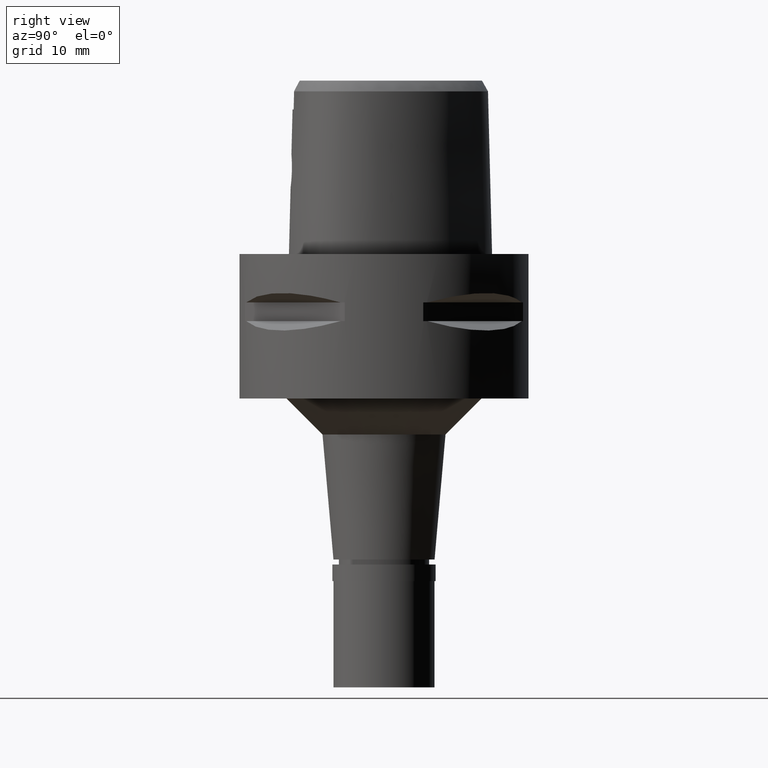
[diagram: clean part render]
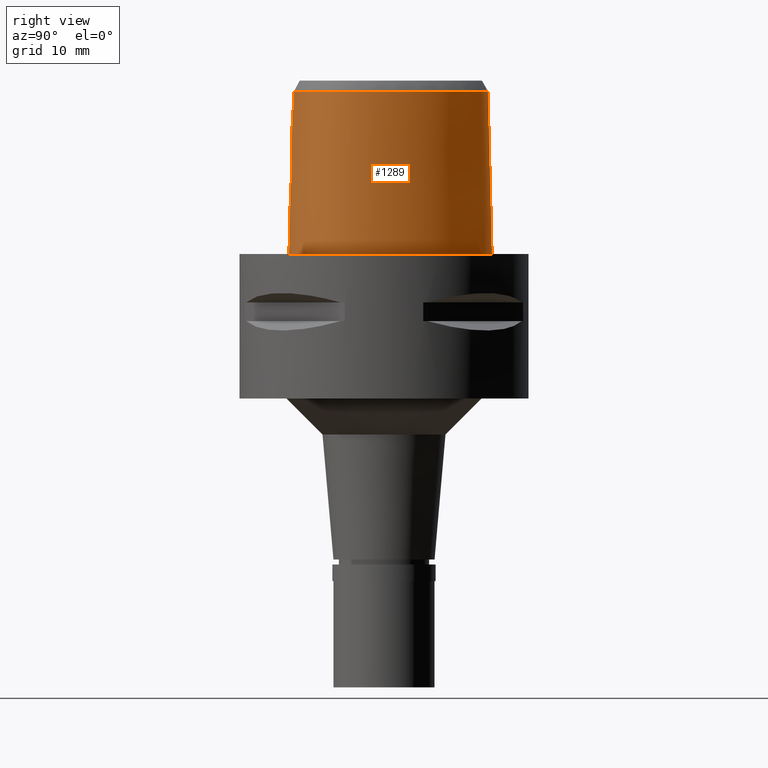
[diagram: same view with one face highlighted and labeled with its STEP entity id]
A machine part, right view. The second image highlights one B-rep face of the part: STEP entity #1289.
In plain terms, the highlighted face is a freeform B-spline surface patch.
Its self-contained STEP definition (entity closure, byte-faithful):
#25 = CARTESIAN_POINT ( 'NONE',  ( -6.443149272929000311E-11, 14.40001989798000182, 22.52071729252999788 ) ) ;
#41 = CARTESIAN_POINT ( 'NONE',  ( 2.299158587324114489, -12.75906338818807306, 11.42842241194412445 ) ) ;
#58 = CARTESIAN_POINT ( 'NONE',  ( 1.631981573592469648, 14.84698125685720882, -2.785085853346941365E-07 ) ) ;
#59 = CARTESIAN_POINT ( 'NONE',  ( 0.8145125421232729535, -12.91457943454070012, 9.348898823453641427 ) ) ;
#82 = CARTESIAN_POINT ( 'NONE',  ( 0.5851900644935355000, -12.92362272837751647, 9.274365687024724636 ) ) ;
#108 = CARTESIAN_POINT ( 'NONE',  ( 0.8599890503297807909, -12.91243217640209195, 9.366823301353729647 ) ) ;
#120 = CARTESIAN_POINT ( 'NONE',  ( 2.603594716343999860, -12.50959097760000027, 20.00000007790999845 ) ) ;
#126 = CARTESIAN_POINT ( 'NONE',  ( 2.293385494860433749, -12.76236463091424866, 11.32198205537717861 ) ) ;
#133 = EDGE_CURVE ( 'NONE', #1671, #3818, #1739, .T. ) ;
#147 = CARTESIAN_POINT ( 'NONE',  ( 12.06000630133999962, -7.835334431189000526, 22.97117871333000139 ) ) ;
#149 = CARTESIAN_POINT ( 'NONE',  ( 0.9140504596458008946, -12.80412716134275897, 13.61058950019207536 ) ) ;
#172 = CARTESIAN_POINT ( 'NONE',  ( 3.976337279564999605, -12.54865310079000018, 15.16398071925000046 ) ) ;
#186 = CARTESIAN_POINT ( 'NONE',  ( 6.021703607729348207, 12.22251596526883155, 22.52071729251866472 ) ) ;
#191 = CARTESIAN_POINT ( 'NONE',  ( 1.030579248283000071, -12.61390757761999915, 22.97117871333000139 ) ) ;
#213 = CARTESIAN_POINT ( 'NONE',  ( -0.8566252963160999601, -12.76751127748999970, 15.16398071925000046 ) ) ;
#241 = CARTESIAN_POINT ( 'NONE',  ( 9.167104992360998850, -10.63410052204000067, 15.16398071925000046 ) ) ;
#251 = CARTESIAN_POINT ( 'NONE',  ( 2.603594716343999860, -12.50959097760000027, 20.00000007790999845 ) ) ;
#265 = CARTESIAN_POINT ( 'NONE',  ( 13.37282176775999964, -5.628458980644999166, 15.16398071925000046 ) ) ;
#286 = CARTESIAN_POINT ( 'NONE',  ( 8.879307790503000675, 9.717869249619999650, 15.16398071925000046 ) ) ;
#310 = CARTESIAN_POINT ( 'NONE',  ( 13.04019923519000024, 2.897436293049999723, 7.356782725182999805 ) ) ;
#312 = CARTESIAN_POINT ( 'NONE',  ( 2.568703243657000090, -12.45023755174000080, 22.52071758139999957 ) ) ;
#335 = CARTESIAN_POINT ( 'NONE',  ( 6.136343168510999924, 12.36836373803999933, 15.16398071925000046 ) ) ;
#339 = CARTESIAN_POINT ( 'NONE',  ( -1.260417588442999891E-08, -12.66301535847000004, 19.99999996345999875 ) ) ;
#386 = CARTESIAN_POINT ( 'NONE',  ( 13.73754042108090800, -5.736583205111110750, -2.785085853346941365E-07 ) ) ;
#411 = CARTESIAN_POINT ( 'NONE',  ( 12.52522393322042227, -8.173666410352700140, -2.785085853346941365E-07 ) ) ;
#412 = CARTESIAN_POINT ( 'NONE',  ( 2.108316059774772100, -12.79932254745050990, 10.57985993986063278 ) ) ;
#432 = CARTESIAN_POINT ( 'NONE',  ( 2.243503838788325044, -12.75015969206853050, 12.01219160938978980 ) ) ;
#455 = CARTESIAN_POINT ( 'NONE',  ( 1.542743282406445982, -12.86521460690468466, 9.794004530746759585 ) ) ;
#480 = CARTESIAN_POINT ( 'NONE',  ( 2.151238930190785048, -12.75164808129621541, 12.31414270909194819 ) ) ;
#502 = CARTESIAN_POINT ( 'NONE',  ( 1.107777221386162303, -12.89898952629148532, 9.478752576622730075 ) ) ;
#518 = CARTESIAN_POINT ( 'NONE',  ( 3.941817142292999510, -12.35544380614999938, 22.97117871333000139 ) ) ;
#521 = CARTESIAN_POINT ( 'NONE',  ( 0.9381876972276956828, -12.80340306009000884, 13.60008248099543593 ) ) ;
#543 = CARTESIAN_POINT ( 'NONE',  ( 10.81840190523000089, -9.997360703581998465, -0.4504152688886999267 ) ) ;
#564 = CARTESIAN_POINT ( 'NONE',  ( 7.165542350528999904, -12.04243711802999961, -0.4504152688886999267 ) ) ;
#573 = CARTESIAN_POINT ( 'NONE',  ( -1.260417588442999891E-08, -12.66301535847000004, 19.99999996345999875 ) ) ;
#587 = CARTESIAN_POINT ( 'NONE',  ( 4.010857416837999345, -12.74186239543000099, 7.356782725182999805 ) ) ;
#612 = CARTESIAN_POINT ( 'NONE',  ( -0.4594072135615999697, 14.96036498296999895, -0.4504152688886999267 ) ) ;
#634 = CARTESIAN_POINT ( 'NONE',  ( 13.43219830256999892, -0.2874481152232000181, 22.97117871333000139 ) ) ;
#655 = CARTESIAN_POINT ( 'NONE',  ( 13.22478982772999956, 2.964135533079000240, -0.4504152688886999267 ) ) ;
#658 = EDGE_LOOP ( 'NONE', ( #3324, #4192, #1873, #1988, #1579, #3683, #1260, #3721 ) ) ;
#706 = B_SPLINE_CURVE_WITH_KNOTS ( 'NONE', 3,
 ( #120, #1551, #3679, #743 ),
 .UNSPECIFIED., .F., .F.,
 ( 4, 4 ),
 ( 0.0000000000000000000, 1.000000000000000000 ),
 .UNSPECIFIED. ) ;
#737 = CARTESIAN_POINT ( 'NONE',  ( 9.354901136656685878, -10.96475156857923672, -2.785085853346941365E-07 ) ) ;
#743 = CARTESIAN_POINT ( 'NONE',  ( 2.568703243657000090, -12.45023755174000080, 22.52071758139999957 ) ) ;
#758 = CARTESIAN_POINT ( 'NONE',  ( 2.060625410339937513, -12.80630362430889235, 10.47760979850948004 ) ) ;
#781 = CARTESIAN_POINT ( 'NONE',  ( 2.230462555841229211, -12.77898657628475299, 10.91885181771379365 ) ) ;
#802 = CARTESIAN_POINT ( 'NONE',  ( 2.283291726754655748, -12.76615336163048298, 11.21397804785362240 ) ) ;
#825 = CARTESIAN_POINT ( 'NONE',  ( 1.900109215921028882, -12.76256732845290465, 12.79816543668667883 ) ) ;
#839 = CARTESIAN_POINT ( 'NONE',  ( 3.539803247036451772, 13.67924950644799509, 22.52071729251866472 ) ) ;
#851 = CARTESIAN_POINT ( 'NONE',  ( 2.273024517897148211, -12.76906917250001783, 11.14078746300480383 ) ) ;
#873 = CARTESIAN_POINT ( 'NONE',  ( 1.408052784049085071, -12.78604258398031668, 13.32559425417543508 ) ) ;
#890 = CARTESIAN_POINT ( 'NONE',  ( 9.070417870341000111, -10.46386434278999999, 22.97117871333000139 ) ) ;
#899 = VERTEX_POINT ( 'NONE', #2458 ) ;
#915 = CARTESIAN_POINT ( 'NONE',  ( -0.5764111327672999385, -12.97358044205000027, 7.356782725182999805 ) ) ;
#962 = CARTESIAN_POINT ( 'NONE',  ( 9.179411191618999766, 9.970937547041000215, -0.4504152688886999267 ) ) ;
#980 = CARTESIAN_POINT ( 'NONE',  ( 12.06912915025940336, -7.841969071234860422, 22.52071729251866472 ) ) ;
#1012 = CARTESIAN_POINT ( 'NONE',  ( 1.594059753773999999, 14.66589043883999999, 7.356782725182999805 ) ) ;
#1033 = CARTESIAN_POINT ( 'NONE',  ( -0.3063166189974000364, 14.96966817096000035, -0.4504152688886999267 ) ) ;
#1057 = CARTESIAN_POINT ( 'NONE',  ( 0.3713127224871999865, 14.59941798710999983, 15.16398071925000046 ) ) ;
#1094 = B_SPLINE_CURVE_WITH_KNOTS ( 'NONE', 3,
 ( #339, #3168, #3893, #2139 ),
 .UNSPECIFIED., .F., .F.,
 ( 4, 4 ),
 ( 0.0000000000000000000, 1.000000000000000000 ),
 .UNSPECIFIED. ) ;
#1104 = VERTEX_POINT ( 'NONE', #3240 ) ;
#1113 = CARTESIAN_POINT ( 'NONE',  ( 0.2902039408553566124, -12.93122636338095610, 9.213445385771416696 ) ) ;
#1119 = CARTESIAN_POINT ( 'NONE',  ( 1.519319005401000302E-10, 14.96299999995999919, 3.171537107013000384E-13 ) ) ;
#1136 = CARTESIAN_POINT ( 'NONE',  ( 0.5439938578405915104, 14.96300000697046961, -2.785085853346941365E-07 ) ) ;
#1137 = CARTESIAN_POINT ( 'NONE',  ( 1.951316193504742946, -12.82105448170039708, 10.28025765297707217 ) ) ;
#1158 = CARTESIAN_POINT ( 'NONE',  ( 6.372642525429118798, 12.66899063051742402, -2.785085853346941365E-07 ) ) ;
#1159 = CARTESIAN_POINT ( 'NONE',  ( 1.727977423403882717, -12.84715031218464354, 9.980214359577360028 ) ) ;
#1177 = CARTESIAN_POINT ( 'NONE',  ( 11.83679699710063815, -9.028767387620929341, -2.785085853346941365E-07 ) ) ;
#1178 = CARTESIAN_POINT ( 'NONE',  ( 1.617438359910112533, -12.85819787466015640, 9.864768670370725800 ) ) ;
#1192 = CARTESIAN_POINT ( 'NONE',  ( -6.443149272929000311E-11, 14.40001989798000182, 22.52071729252999788 ) ) ;
#1203 = CARTESIAN_POINT ( 'NONE',  ( 2.133463040824036483, -12.75222410475732282, 12.35927822234069851 ) ) ;
#1224 = CARTESIAN_POINT ( 'NONE',  ( 12.47264435882000022, -7.201084577315000068, 22.97117871333000139 ) ) ;
#1227 = CARTESIAN_POINT ( 'NONE',  ( 0.5839158947253222376, -12.81370532052833155, 13.74793500504250510 ) ) ;
#1245 = CARTESIAN_POINT ( 'NONE',  ( -0.5714334884638000434, -12.77845909250000034, 15.16398071925000046 ) ) ;
#1259 = CARTESIAN_POINT ( 'NONE',  ( 13.49620531830296422, -4.288887307216067590, 22.52071729251866472 ) ) ;
#1260 = ORIENTED_EDGE ( 'NONE', *, *, #3608, .T. ) ;
#1265 = CARTESIAN_POINT ( 'NONE',  ( 11.41870157475000092, -8.632189108453999893, 22.97117871333000139 ) ) ;
#1289 = ADVANCED_FACE ( 'NONE', ( #3027 ), #2820, .T. ) ;
#1317 = CARTESIAN_POINT ( 'NONE',  ( 13.56059770462999836, -5.684126897168999548, 7.356782725182999805 ) ) ;
#1334 = CARTESIAN_POINT ( 'NONE',  ( 6.968888527419462520, -11.49954675151991168, 22.52071729251866472 ) ) ;
#1368 = CARTESIAN_POINT ( 'NONE',  ( 13.18504583088000004, -5.572791064120000470, 22.97117871333000139 ) ) ;
#1391 = CARTESIAN_POINT ( 'NONE',  ( 3.702933656858999889, 14.02580469213999947, 7.356782725182999805 ) ) ;
#1409 = CARTESIAN_POINT ( 'NONE',  ( 13.74837364151000152, -5.739794813694000020, -0.4504152688886999267 ) ) ;
#1470 = CARTESIAN_POINT ( 'NONE',  ( 1.854517083046229198, -12.76478398344009335, 12.86296390898198538 ) ) ;
#1489 = CARTESIAN_POINT ( 'NONE',  ( 0.1433742188150442520, -12.93301545397000218, 9.200000000000001066 ) ) ;
#1491 = B_SPLINE_CURVE_WITH_KNOTS ( 'NONE', 3,
 ( #251, #3756, #2419, #573 ),
 .UNSPECIFIED., .F., .F.,
 ( 4, 4 ),
 ( 0.0000000000000000000, 1.000000000000000000 ),
 .UNSPECIFIED. ) ;
#1513 = CARTESIAN_POINT ( 'NONE',  ( 12.97089752096364812, -7.488751175362784451, -2.785085853346941365E-07 ) ) ;
#1515 = CARTESIAN_POINT ( 'NONE',  ( 1.636146738088228414, -12.77533106805132768, 13.11651252606782236 ) ) ;
#1540 = CARTESIAN_POINT ( 'NONE',  ( 0.9870234129230369691, -12.90617499170332039, 9.419215489491548965 ) ) ;
#1551 = CARTESIAN_POINT ( 'NONE',  ( 2.592189410844740749, -12.48967527515265097, 20.84023924574000119 ) ) ;
#1557 = CARTESIAN_POINT ( 'NONE',  ( 2.299969345384956565, -12.75813322093608448, 11.46185367829120416 ) ) ;
#1573 = CARTESIAN_POINT ( 'NONE',  ( 13.44334616192889875, -0.2854647381888544833, 22.52071729251866472 ) ) ;
#1579 = ORIENTED_EDGE ( 'NONE', *, *, #2163, .T. ) ;
#1584 = CARTESIAN_POINT ( 'NONE',  ( 1.043973006291857963, -12.80001853783672416, 13.54975762566914810 ) ) ;
#1597 = CARTESIAN_POINT ( 'NONE',  ( 1.515894610912724927, 14.29262276006230259, 22.52071729251866472 ) ) ;
#1605 = CARTESIAN_POINT ( 'NONE',  ( 9.263792114381001142, -10.80433670128999957, 7.356782725182999805 ) ) ;
#1618 = CARTESIAN_POINT ( 'NONE',  ( 11.01301037806751282, 6.358384389067616382, 22.52071729251866472 ) ) ;
#1652 = CARTESIAN_POINT ( 'NONE',  ( -5.464473214716999265E-14, -12.93301545397000041, 9.199999999999999289 ) ) ;
#1671 = VERTEX_POINT ( 'NONE', #25 ) ;
#1692 = VERTEX_POINT ( 'NONE', #3948 ) ;
#1699 = CARTESIAN_POINT ( 'NONE',  ( 13.98872597109999916, -2.620510733161000250, 7.356782725182999805 ) ) ;
#1721 = VERTEX_POINT ( 'NONE', #1119 ) ;
#1722 = CARTESIAN_POINT ( 'NONE',  ( 1.634303316144999796, 14.85806844252000047, -0.4504152688886999267 ) ) ;
#1729 = CARTESIAN_POINT ( 'NONE',  ( -6.443149272929000311E-11, 14.40001989798000182, 22.52071729252999788 ) ) ;
#1739 = B_SPLINE_CURVE_WITH_KNOTS ( 'NONE', 3,
 ( #1192, #3368, #1597, #839, #186, #2263, #1618, #3021, #1573, #4437, #1259, #4166, #4119, #2352, #980, #2369, #3762, #2718, #1334, #2397, #3785, #2696 ),
 .UNSPECIFIED., .F., .F.,
 ( 4, 1, 1, 1, 1, 1, 1, 1, 1, 1, 1, 1, 1, 1, 1, 1, 1, 1, 1, 4 ),
 ( 0.0000000000000000000, 0.04407253041122565634, 0.08814506081991275999, 0.1762901216374986035, 0.2644351824549786012, 0.3525802432724586266, 0.4407253040901502605, 0.5288703649076302860, 0.5729428953164231730, 0.6170154257251103669, 0.6610879561339031429, 0.6831242213381938377, 0.7051604865426960300, 0.7271967517469868358, 0.7492330169513832239, 0.7933055473601759999, 0.8373780777689689980, 0.8814506081776560809, 0.9695956689951890084, 1.000000000000000000 ),
 .UNSPECIFIED. ) ;
#1745 = CARTESIAN_POINT ( 'NONE',  ( 12.85560864265000092, 2.830737053020000005, 15.16398071925000046 ) ) ;
#1765 = CARTESIAN_POINT ( 'NONE',  ( 1.513572629033999917, 14.28153443148999990, 22.97117871333000139 ) ) ;
#1787 = CARTESIAN_POINT ( 'NONE',  ( 13.67906228122999934, -4.314970317306999981, 15.16398071925000046 ) ) ;
#1841 = CARTESIAN_POINT ( 'NONE',  ( 9.170754368093497533, 9.963637504513874532, -2.785085853346941365E-07 ) ) ;
#1842 = CARTESIAN_POINT ( 'NONE',  ( 2.093435941452272520, -12.80154818978906128, 10.54659307487395381 ) ) ;
#1863 = CARTESIAN_POINT ( 'NONE',  ( 10.81142122680449624, -9.988463677375943206, -2.785085853346941365E-07 ) ) ;
#1864 = CARTESIAN_POINT ( 'NONE',  ( 2.300118713600372455, -12.75356737073897051, 11.64310838016013783 ) ) ;
#1873 = ORIENTED_EDGE ( 'NONE', *, *, #3991, .F. ) ;
#1874 = EDGE_CURVE ( 'NONE', #3121, #899, #1491, .T. ) ;
#1888 = CARTESIAN_POINT ( 'NONE',  ( 2.127531297605242511, -12.75242672595457449, 12.37385599951360327 ) ) ;
#1898 = VECTOR ( 'NONE', #3375, 1000.000000000000000 ) ;
#1908 = CARTESIAN_POINT ( 'NONE',  ( 1.460959802882076719, -12.87242665810761721, 9.723111638546765079 ) ) ;
#1922 = CARTESIAN_POINT ( 'NONE',  ( 4.045377554109998997, -12.93507169007999913, -0.4504152688886999267 ) ) ;
#1925 = CARTESIAN_POINT ( 'NONE',  ( 2.225429295879719493, -12.75012210877836871, 12.08593180703758918 ) ) ;
#1946 = CARTESIAN_POINT ( 'NONE',  ( 7.031868895012000742, -11.67341285950999996, 15.16398071925000046 ) ) ;
#1988 = ORIENTED_EDGE ( 'NONE', *, *, #1874, .T. ) ;
#1989 = CARTESIAN_POINT ( 'NONE',  ( 12.98066718465000058, -7.494391693337000504, -0.4504152688886999267 ) ) ;
#2014 = CARTESIAN_POINT ( 'NONE',  ( 7.098705622770000723, -11.85792498876999979, 7.356782725182999805 ) ) ;
#2041 = CARTESIAN_POINT ( 'NONE',  ( -0.4238406457805000138, 14.37596227370000079, 22.97117871333000139 ) ) ;
#2063 = CARTESIAN_POINT ( 'NONE',  ( 11.00320926334000049, 6.352726110536999649, 22.97117871333000139 ) ) ;
#2094 = CARTESIAN_POINT ( 'NONE',  ( 2.603594716343999860, -12.50959097760000027, 20.00000007790999845 ) ) ;
#2113 = CARTESIAN_POINT ( 'NONE',  ( 14.06716929034999986, -4.370330522753000047, -0.4504152688886999267 ) ) ;
#2136 = CARTESIAN_POINT ( 'NONE',  ( 3.786921846249000190, 14.20422968721999979, -0.4504152688886999267 ) ) ;
#2139 = CARTESIAN_POINT ( 'NONE',  ( 0.0000000000000000000, -12.81802318095999915, 13.79999999999999893 ) ) ;
#2163 = EDGE_CURVE ( 'NONE', #899, #4273, #1094, .T. ) ;
#2164 = CARTESIAN_POINT ( 'NONE',  ( 14.05597390277868719, -4.368733594737191694, -2.785085853346941365E-07 ) ) ;
#2188 = CARTESIAN_POINT ( 'NONE',  ( 0.7506047745049366782, -12.91741682039676498, 9.325319817445205217 ) ) ;
#2208 = CARTESIAN_POINT ( 'NONE',  ( 2.192541761837270897, -12.75060236087973564, 12.19586171827744181 ) ) ;
#2228 = CARTESIAN_POINT ( 'NONE',  ( 1.777128131587684123, -12.76853727841397834, 12.96066480105604590 ) ) ;
#2249 = CARTESIAN_POINT ( 'NONE',  ( 1.298081316806007468, -12.88549019285320618, 9.599832171980064999 ) ) ;
#2263 = CARTESIAN_POINT ( 'NONE',  ( 8.737913805848595672, 9.598635895952249086, 22.52071729251866472 ) ) ;
#2271 = CARTESIAN_POINT ( 'NONE',  ( 1.057767381993000022, -13.20004107898000001, -0.4504152688886999267 ) ) ;
#2274 = CARTESIAN_POINT ( 'NONE',  ( 2.021153119196465120, -12.75677398847753707, 12.60794142557543651 ) ) ;
#2291 = CARTESIAN_POINT ( 'NONE',  ( 0.9948637763881266194, -12.80164440045601459, 13.57424493541911303 ) ) ;
#2304 = VECTOR ( 'NONE', #4250, 999.9999999999998863 ) ;
#2338 = CARTESIAN_POINT ( 'NONE',  ( -0.5664558441603000372, -12.58333774294000129, 22.97117871333000139 ) ) ;
#2352 = CARTESIAN_POINT ( 'NONE',  ( 12.48241502959972138, -7.206725676734516028, 22.52071729251866472 ) ) ;
#2369 = CARTESIAN_POINT ( 'NONE',  ( 11.42690036411355514, -8.639965949823794844, 22.52071729251866472 ) ) ;
#2376 = CARTESIAN_POINT ( 'NONE',  ( 13.62540806750000044, -0.2530731022062000513, 15.16398071925000046 ) ) ;
#2397 = CARTESIAN_POINT ( 'NONE',  ( 4.736458210706349981, -12.13940339171319316, 22.52071729251866472 ) ) ;
#2406 = CARTESIAN_POINT ( 'NONE',  ( 13.81861783243999930, -0.2186980891892000012, 7.356782725182999805 ) ) ;
#2419 = CARTESIAN_POINT ( 'NONE',  ( 0.8728598500690846196, -12.66303358566461768, 20.00000039696020693 ) ) ;
#2429 = CARTESIAN_POINT ( 'NONE',  ( 1.553816191404000069, 14.47371243515999950, 15.16398071925000046 ) ) ;
#2451 = CARTESIAN_POINT ( 'NONE',  ( -0.2984610431053000279, 14.77461944326999976, 7.356782725182999805 ) ) ;
#2458 = CARTESIAN_POINT ( 'NONE',  ( -1.260417588442999891E-08, -12.66301535847000004, 19.99999996345999875 ) ) ;
#2477 = CARTESIAN_POINT ( 'NONE',  ( -0.4475516909678999844, 14.76556407988000075, 7.356782725182999805 ) ) ;
#2524 = CARTESIAN_POINT ( 'NONE',  ( 13.34121472003709208, -6.760328909084252658, -2.785085853346941365E-07 ) ) ;
#2525 = CARTESIAN_POINT ( 'NONE',  ( 1.645449367503719396, -12.77488553661844861, 13.10705414946581193 ) ) ;
#2550 = CARTESIAN_POINT ( 'NONE',  ( 0.5113403789473722760, -12.92585909161382141, 9.256304699910778311 ) ) ;
#2570 = CARTESIAN_POINT ( 'NONE',  ( 1.869424949256399238, -12.83134063687127302, 10.15811452081313782 ) ) ;
#2590 = CARTESIAN_POINT ( 'NONE',  ( 2.129813370590991184, -12.75234797374023898, 12.36828487053672809 ) ) ;
#2613 = CARTESIAN_POINT ( 'NONE',  ( 11.56079936363000193, -8.766973881439000138, 15.16398071925000046 ) ) ;
#2615 = CARTESIAN_POINT ( 'NONE',  ( 0.8747345760849613017, -12.91171422237639987, 9.372829819807561691 ) ) ;
#2636 = CARTESIAN_POINT ( 'NONE',  ( -0.8641029045139000386, -12.96254437292000006, 7.356782725182999805 ) ) ;
#2639 = CARTESIAN_POINT ( 'NONE',  ( 0.2807011221681519064, -12.81802318096000270, 13.80000000000000249 ) ) ;
#2656 = CARTESIAN_POINT ( 'NONE',  ( 6.965032167253999873, -11.48890073024999836, 22.97117871333000139 ) ) ;
#2680 = CARTESIAN_POINT ( 'NONE',  ( 12.53434584182000222, -8.180300366545999680, -0.4504152688886999267 ) ) ;
#2696 = CARTESIAN_POINT ( 'NONE',  ( 2.568703243657000090, -12.45023755174000080, 22.52071758139999957 ) ) ;
#2718 = CARTESIAN_POINT ( 'NONE',  ( 9.075996545096307599, -10.47368666716765695, 22.52071729251866472 ) ) ;
#2723 = CARTESIAN_POINT ( 'NONE',  ( 11.51281501228000081, 6.646926448812999766, -0.4504152688886999267 ) ) ;
#2748 = CARTESIAN_POINT ( 'NONE',  ( 3.534957278079000176, 13.66895470197999884, 22.97117871333000139 ) ) ;
#2776 = CARTESIAN_POINT ( 'NONE',  ( 9.029359491060999332, 9.844403398329999888, 7.356782725182999805 ) ) ;
#2797 = CARTESIAN_POINT ( 'NONE',  ( 13.59718083923999821, -2.623279432113999832, 22.97117871333000139 ) ) ;
#2820 = B_SPLINE_SURFACE_WITH_KNOTS ( 'NONE', 3, 3, ( 
 ( #4468, #2636, #213, #3728 ),
 ( #4125, #915, #1245, #2338 ),
 ( #2271, #3706, #3768, #191 ),
 ( #1922, #587, #172, #518 ),
 ( #564, #2014, #1946, #2656 ),
 ( #3010, #1605, #241, #890 ),
 ( #543, #3418, #3748, #4443 ),
 ( #3073, #4490, #2613, #1265 ),
 ( #2680, #3684, #3327, #147 ),
 ( #1989, #2989, #4407, #1224 ),
 ( #4054, #4098, #3144, #3467 ),
 ( #1409, #1317, #265, #1368 ),
 ( #2113, #3518, #1787, #2826 ),
 ( #3492, #1699, #4198, #2797 ),
 ( #3095, #2406, #2376, #634 ),
 ( #655, #310, #1745, #3186 ),
 ( #2723, #4149, #3823, #2063 ),
 ( #962, #2776, #286, #4541 ),
 ( #4239, #4174, #335, #4565 ),
 ( #2136, #1391, #3445, #2748 ),
 ( #1722, #1012, #2429, #1765 ),
 ( #4217, #4510, #1057, #3794 ),
 ( #1033, #2451, #3843, #3120 ),
 ( #612, #2477, #3539, #2041 ) ),
 .UNSPECIFIED., .F., .F., .F.,
 ( 4, 1, 1, 1, 1, 1, 1, 1, 1, 1, 1, 1, 1, 1, 1, 1, 1, 1, 1, 1, 1, 4 ),
 ( 4, 4 ),
 ( -0.01796457239586999807, 0.0000000000000000000, 0.08333333333315000313, 0.1666666666663000063, 0.2083333333328000192, 0.2499999999994000077, 0.2916666666659999962, 0.3124999999992999489, 0.3333333333325000369, 0.3541666666659000207, 0.3749999999990999977, 0.4166666666657000140, 0.4583333333321999992, 0.4999999999987999599, 0.5833333333318999614, 0.6666666666652000250, 0.7499999999983000265, 0.8333333333314000280, 0.9166666666646000605, 0.9583333333311000457, 1.000000000000000000, 1.011713651438000072 ),
 ( -3.508336052226999966E-08, 1.000001789251000028 ),
 .UNSPECIFIED. ) ;
#2826 = CARTESIAN_POINT ( 'NONE',  ( 13.48500877666999820, -4.287290214582999859, 22.97117871333000139 ) ) ;
#2881 = CARTESIAN_POINT ( 'NONE',  ( 0.6955382434997621210, -12.91959727455216900, 9.307353099904597471 ) ) ;
#2899 = CARTESIAN_POINT ( 'NONE',  ( 1.347795336321267801, -13.16300000696572781, -2.785085853346941365E-07 ) ) ;
#2902 = CARTESIAN_POINT ( 'NONE',  ( 1.591641127633350639, -12.86067053571206742, 9.839636682109443200 ) ) ;
#2926 = CARTESIAN_POINT ( 'NONE',  ( 1.523028941585175433, -12.78074262657536231, 13.23006938842580915 ) ) ;
#2947 = CARTESIAN_POINT ( 'NONE',  ( 2.174655026129327595, -12.75097664368956885, 12.25065586503511206 ) ) ;
#2969 = CARTESIAN_POINT ( 'NONE',  ( 1.362992585860884232, -12.88053689248702405, 9.645493491597008529 ) ) ;
#2989 = CARTESIAN_POINT ( 'NONE',  ( 12.81132624271000076, -7.396622654663000063, 7.356782725182999805 ) ) ;
#2991 = CARTESIAN_POINT ( 'NONE',  ( 0.8979950357797691352, -12.80460331550703579, 13.61747047129697563 ) ) ;
#3010 = CARTESIAN_POINT ( 'NONE',  ( 9.360479236400999881, -10.97457288054000024, -0.4504152688886999267 ) ) ;
#3021 = CARTESIAN_POINT ( 'NONE',  ( 12.68166859856200190, 2.767886240359345607, 22.52071729251866472 ) ) ;
#3027 = FACE_OUTER_BOUND ( 'NONE', #658, .T. ) ;
#3073 = CARTESIAN_POINT ( 'NONE',  ( 11.84499494139000042, -9.036543427407998763, -0.4504152688886999267 ) ) ;
#3095 = CARTESIAN_POINT ( 'NONE',  ( 14.01182759737999817, -0.1843230761720999755, -0.4504152688886999267 ) ) ;
#3120 = CARTESIAN_POINT ( 'NONE',  ( -0.2827498913211000664, 14.38452198790000125, 22.97117871333000139 ) ) ;
#3121 = VERTEX_POINT ( 'NONE', #2094 ) ;
#3144 = CARTESIAN_POINT ( 'NONE',  ( 12.99424149474000068, -6.606040322223999617, 15.16398071925000046 ) ) ;
#3168 = CARTESIAN_POINT ( 'NONE',  ( -4.211366329110048057E-09, -12.71469678372646328, 17.93333361273100479 ) ) ;
#3186 = CARTESIAN_POINT ( 'NONE',  ( 12.67101805009999893, 2.764037812990999488, 22.97117871333000139 ) ) ;
#3220 = CARTESIAN_POINT ( 'NONE',  ( 14.00068088706435532, -0.1863062487737388306, -2.785085853346941365E-07 ) ) ;
#3240 = CARTESIAN_POINT ( 'NONE',  ( -3.406048900478999858E-13, -13.16299999999999848, 3.165430880377000101E-13 ) ) ;
#3241 = CARTESIAN_POINT ( 'NONE',  ( 3.782076376780329596, 14.19393594386885660, -2.785085853346941365E-07 ) ) ;
#3242 = CARTESIAN_POINT ( 'NONE',  ( 1.661097454702009646, -12.77413506297898316, 13.09087457277944644 ) ) ;
#3265 = CARTESIAN_POINT ( 'NONE',  ( 1.706514786401625239, -12.77195056588762156, 13.04216762706386845 ) ) ;
#3289 = CARTESIAN_POINT ( 'NONE',  ( 1.684262171804238095, -12.77302273728518678, 13.06656659278451471 ) ) ;
#3309 = CARTESIAN_POINT ( 'NONE',  ( 1.567234804650388114, -12.86297445961291075, 9.816357320212370396 ) ) ;
#3324 = ORIENTED_EDGE ( 'NONE', *, *, #4444, .F. ) ;
#3327 = CARTESIAN_POINT ( 'NONE',  ( 12.21811948149999871, -7.950323076307998171, 15.16398071925000046 ) ) ;
#3330 = CARTESIAN_POINT ( 'NONE',  ( 1.142660623815376475, -12.79660889249700872, 13.49746603130101441 ) ) ;
#3368 = CARTESIAN_POINT ( 'NONE',  ( 0.5039711947955511917, 14.40001989752921041, 22.52071729251866472 ) ) ;
#3375 = DIRECTION ( 'NONE',  ( -3.107291839296880578E-14, -0.02499051295424905769, -0.9996876883618621701 ) ) ;
#3418 = CARTESIAN_POINT ( 'NONE',  ( 10.69740340436999837, -9.843145487319999276, 7.356782725182999805 ) ) ;
#3445 = CARTESIAN_POINT ( 'NONE',  ( 3.618945467469000032, 13.84737969705999916, 15.16398071925000046 ) ) ;
#3467 = CARTESIAN_POINT ( 'NONE',  ( 12.81560181767000017, -6.526604615597000780, 22.97117871333000139 ) ) ;
#3486 = EDGE_CURVE ( 'NONE', #1104, #1721, #4039, .T. ) ;
#3492 = CARTESIAN_POINT ( 'NONE',  ( 14.18449853703000052, -2.619126383684000192, -0.4504152688886999267 ) ) ;
#3518 = CARTESIAN_POINT ( 'NONE',  ( 13.87311578579000049, -4.342650420030000014, 7.356782725182999805 ) ) ;
#3539 = CARTESIAN_POINT ( 'NONE',  ( -0.4356961683741999991, 14.57076317679000077, 15.16398071925000046 ) ) ;
#3591 = CARTESIAN_POINT ( 'NONE',  ( 11.50301490778323554, 6.641268753498328792, -2.785085853346941365E-07 ) ) ;
#3592 = CARTESIAN_POINT ( 'NONE',  ( 2.043463385603180527, -12.80871364515761357, 10.44374245684926095 ) ) ;
#3608 = EDGE_CURVE ( 'NONE', #1692, #1104, #3730, .T. ) ;
#3614 = CARTESIAN_POINT ( 'NONE',  ( 2.080890816678778066, -12.75405392847557096, 12.48689062668485761 ) ) ;
#3640 = CARTESIAN_POINT ( 'NONE',  ( -5.464473214716999265E-14, -12.93301545397000041, 9.199999999999999289 ) ) ;
#3665 = CARTESIAN_POINT ( 'NONE',  ( 2.186354490194189371, -12.78715814037610166, 10.76765892232664612 ) ) ;
#3679 = CARTESIAN_POINT ( 'NONE',  ( 2.580559080356283008, -12.46988838676011468, 21.68047841357000038 ) ) ;
#3683 = ORIENTED_EDGE ( 'NONE', *, *, #4591, .F. ) ;
#3684 = CARTESIAN_POINT ( 'NONE',  ( 12.37623266165999958, -8.065311721426997593, 7.356782725182999805 ) ) ;
#3687 = CARTESIAN_POINT ( 'NONE',  ( 1.677338744211869681, -12.85235830105379407, 9.924503536723731756 ) ) ;
#3706 = CARTESIAN_POINT ( 'NONE',  ( 1.048704670756000157, -13.00466324519000061, 7.356782725182999805 ) ) ;
#3709 = CARTESIAN_POINT ( 'NONE',  ( 1.209086969166290659, -12.79412523546898051, 13.45817784097332925 ) ) ;
#3721 = ORIENTED_EDGE ( 'NONE', *, *, #3486, .T. ) ;
#3728 = CARTESIAN_POINT ( 'NONE',  ( -0.8491476881182999925, -12.57247818206000112, 22.97117871333000139 ) ) ;
#3730 = LINE ( 'NONE', #1652, #1898 ) ;
#3748 = CARTESIAN_POINT ( 'NONE',  ( 10.57640490350999940, -9.688930271056999999, 15.16398071925000046 ) ) ;
#3756 = CARTESIAN_POINT ( 'NONE',  ( 1.745775296001356836, -12.61172358491080558, 20.00000039696020693 ) ) ;
#3762 = CARTESIAN_POINT ( 'NONE',  ( 10.46238780066946639, -9.543612998139179737, 22.52071729251866472 ) ) ;
#3768 = CARTESIAN_POINT ( 'NONE',  ( 1.039641959520000158, -12.80928541139999943, 15.16398071925000046 ) ) ;
#3785 = CARTESIAN_POINT ( 'NONE',  ( 3.014424016408626894, -12.39773933397687244, 22.52071729251866472 ) ) ;
#3794 = CARTESIAN_POINT ( 'NONE',  ( 0.3611446998662999897, 14.40383103001999920, 22.97117871333000139 ) ) ;
#3818 = VERTEX_POINT ( 'NONE', #312 ) ;
#3823 = CARTESIAN_POINT ( 'NONE',  ( 11.17307784632000001, 6.450792889961999954, 15.16398071925000046 ) ) ;
#3843 = CARTESIAN_POINT ( 'NONE',  ( -0.2906054672132000194, 14.57957071557999917, 15.16398071925000046 ) ) ;
#3893 = CARTESIAN_POINT ( 'NONE',  ( -4.221085725347910337E-09, -12.76635998234215741, 15.86666680636549742 ) ) ;
#3917 = CARTESIAN_POINT ( 'NONE',  ( 4.043386008960368372, -12.92392500689646440, -2.785085853346941365E-07 ) ) ;
#3939 = CARTESIAN_POINT ( 'NONE',  ( 13.21414037705303635, 2.960287502379785884, -2.785085853346941365E-07 ) ) ;
#3940 = CARTESIAN_POINT ( 'NONE',  ( 1.607887411598817096, -12.85912041386505145, 9.855364509019537422 ) ) ;
#3948 = CARTESIAN_POINT ( 'NONE',  ( -5.464473214716999265E-14, -12.93301545397000041, 9.199999999999999289 ) ) ;
#3965 = CARTESIAN_POINT ( 'NONE',  ( 1.519319005401000302E-10, 14.96299999995999919, 3.171537107013000384E-13 ) ) ;
#3966 = CARTESIAN_POINT ( 'NONE',  ( 0.8690674297323661701, -12.91199189238994371, 9.370505741516803155 ) ) ;
#3975 = B_SPLINE_CURVE_WITH_KNOTS ( 'NONE', 3,
 ( #3640, #1489, #1113, #2550, #82, #2881, #2188, #59, #4296, #108, #3966, #2615, #1540, #502, #2249, #2969, #1908, #4347, #455, #3309, #2902, #3940, #1178, #3687, #1159, #4035, #2570, #1137, #3987, #3592, #758, #1842, #412, #3665, #781, #851, #802, #126, #4388, #41, #1557, #1864, #4365, #432, #1925, #2208, #2947, #480, #4318, #1203, #2590, #1888, #3614, #2274, #825, #1470, #2228, #4010, #3265, #3289, #3242, #2525, #1515, #2926, #873, #3709, #3330, #1584, #2291, #521, #149, #2991, #4410, #1227, #2639, #4058 ),
 .UNSPECIFIED., .F., .F.,
 ( 4, 2, 2, 1, 1, 1, 2, 2, 2, 2, 2, 1, 2, 2, 2, 2, 2, 2, 2, 2, 2, 2, 2, 2, 2, 1, 1, 1, 2, 2, 2, 2, 2, 1, 2, 2, 2, 2, 1, 1, 2, 2, 4 ),
 ( 0.0000000000000000000, 0.06249999999999257538, 0.09374999999998882838, 0.1093749999999869410, 0.1171874999999858447, 0.1210937499999851785, 0.1230468749999848593, 0.1249999999999845263, 0.1874999999999736877, 0.2187499999999682476, 0.2343749999999655276, 0.2421874999999641676, 0.2460937499999637235, 0.2499999999999632516, 0.2812499999999619194, 0.3124999999999606426, 0.3437499999999593658, 0.3593749999999587552, 0.3749999999999580891, 0.4374999999999575895, 0.4687499999999569789, 0.4843749999999569789, 0.4999999999999570344, 0.5624999999999572564, 0.5937499999999573674, 0.6093749999999573674, 0.6171874999999578115, 0.6210937499999575895, 0.6230468749999578115, 0.6249999999999580336, 0.6874999999999630296, 0.7187499999999656941, 0.7343749999999669154, 0.7421874999999675815, 0.7460937499999679146, 0.7499999999999681366, 0.8124999999999751310, 0.8437499999999786837, 0.8593749999999805711, 0.8671874999999815703, 0.8710937499999820144, 0.8749999999999824585, 1.000000000000000000 ),
 .UNSPECIFIED. ) ;
#3987 = CARTESIAN_POINT ( 'NONE',  ( 1.989864840047336436, -12.81604061847016318, 10.34408982122400822 ) ) ;
#3991 = EDGE_CURVE ( 'NONE', #3121, #3818, #706, .T. ) ;
#4010 = CARTESIAN_POINT ( 'NONE',  ( 1.749832844618249839, -12.76985976215412322, 12.99331170241845967 ) ) ;
#4035 = CARTESIAN_POINT ( 'NONE',  ( 1.823556130523415586, -12.83669982089714523, 10.09632717221610321 ) ) ;
#4039 = B_SPLINE_CURVE_WITH_KNOTS ( 'NONE', 3,
 ( #4346, #2899, #3917, #4364, #737, #1863, #1177, #411, #1513, #2524, #386, #2164, #4317, #3220, #3939, #3591, #1841, #1158, #3241, #58, #1136, #3965 ),
 .UNSPECIFIED., .F., .F.,
 ( 4, 1, 1, 1, 1, 1, 1, 1, 1, 1, 1, 1, 1, 1, 1, 1, 1, 1, 1, 4 ),
 ( 0.0000000000000000000, 0.08333333333315000313, 0.1666666666663000063, 0.2083333333328000192, 0.2499999999994000077, 0.2916666666659999962, 0.3124999999992999489, 0.3333333333325000369, 0.3541666666659000207, 0.3749999999990999977, 0.4166666666657000140, 0.4583333333321999992, 0.4999999999987999599, 0.5833333333318999614, 0.6666666666652000250, 0.7499999999983000265, 0.8333333333314000280, 0.9166666666646000605, 0.9583333333311000457, 1.000000000000000000 ),
 .UNSPECIFIED. ) ;
#4054 = CARTESIAN_POINT ( 'NONE',  ( 13.35152084887999990, -6.764911735479000043, -0.4504152688886999267 ) ) ;
#4058 = CARTESIAN_POINT ( 'NONE',  ( 0.0000000000000000000, -12.81802318095999915, 13.79999999999999893 ) ) ;
#4098 = CARTESIAN_POINT ( 'NONE',  ( 13.17288117180999940, -6.685476028851999430, 7.356782725182999805 ) ) ;
#4119 = CARTESIAN_POINT ( 'NONE',  ( 12.82590900890650332, -6.531187914406316963, 22.52071729251866472 ) ) ;
#4125 = CARTESIAN_POINT ( 'NONE',  ( -0.5813887770708999758, -13.16870179160000021, -0.4504152688886999267 ) ) ;
#4149 = CARTESIAN_POINT ( 'NONE',  ( 11.34294642929999952, 6.548859669386999371, 7.356782725182999805 ) ) ;
#4166 = CARTESIAN_POINT ( 'NONE',  ( 13.19588016803722397, -5.576003003767293187, 22.52071729251866472 ) ) ;
#4174 = CARTESIAN_POINT ( 'NONE',  ( 6.258002241125000253, 12.52314193726000013, 7.356782725182999805 ) ) ;
#4192 = ORIENTED_EDGE ( 'NONE', *, *, #133, .T. ) ;
#4198 = CARTESIAN_POINT ( 'NONE',  ( 13.79295340516999957, -2.621895082637000218, 15.16398071925000046 ) ) ;
#4217 = CARTESIAN_POINT ( 'NONE',  ( 0.3916487677289000047, 14.99059190128999930, -0.4504152688886999267 ) ) ;
#4239 = CARTESIAN_POINT ( 'NONE',  ( 6.379661313739998896, 12.67792013649000005, -0.4504152688886999267 ) ) ;
#4250 = DIRECTION ( 'NONE',  ( 9.604304234813189540E-12, 0.02499051293194049644, -0.9996876883624198351 ) ) ;
#4273 = VERTEX_POINT ( 'NONE', #4498 ) ;
#4278 = LINE ( 'NONE', #1729, #2304 ) ;
#4296 = CARTESIAN_POINT ( 'NONE',  ( 0.8463630567454490938, -12.91308736094397602, 9.361346884261207535 ) ) ;
#4317 = CARTESIAN_POINT ( 'NONE',  ( 14.17320397290251321, -2.619206249950595033, -2.785085853346941365E-07 ) ) ;
#4318 = CARTESIAN_POINT ( 'NONE',  ( 2.138891804680092878, -12.75204249368167275, 12.34575813156822832 ) ) ;
#4346 = CARTESIAN_POINT ( 'NONE',  ( -3.406048900478999858E-13, -13.16299999999999848, 3.165430880377000101E-13 ) ) ;
#4347 = CARTESIAN_POINT ( 'NONE',  ( 1.493711519928028419, -12.86960986600945667, 9.750504243696054729 ) ) ;
#4364 = CARTESIAN_POINT ( 'NONE',  ( 7.161686387850269675, -12.03179219407792644, -2.785085853346941365E-07 ) ) ;
#4365 = CARTESIAN_POINT ( 'NONE',  ( 2.286485425364321422, -12.75134569601222978, 11.79083204284530950 ) ) ;
#4388 = CARTESIAN_POINT ( 'NONE',  ( 2.295866016296754353, -12.76119921827351433, 11.35768768151777408 ) ) ;
#4407 = CARTESIAN_POINT ( 'NONE',  ( 12.64198530077000093, -7.298853615989000510, 15.16398071925000046 ) ) ;
#4410 = CARTESIAN_POINT ( 'NONE',  ( 0.8913097515803065640, -12.80479973338802147, 13.62029918993118294 ) ) ;
#4437 = CARTESIAN_POINT ( 'NONE',  ( 13.60847656765262492, -2.623199557614496857, 22.52071729251866472 ) ) ;
#4443 = CARTESIAN_POINT ( 'NONE',  ( 10.45540640265000043, -9.534715054794999034, 22.97117871333000139 ) ) ;
#4444 = EDGE_CURVE ( 'NONE', #1671, #1721, #4278, .T. ) ;
#4468 = CARTESIAN_POINT ( 'NONE',  ( -0.8715805127115999751, -13.15757746835000042, -0.4504152688886999267 ) ) ;
#4490 = CARTESIAN_POINT ( 'NONE',  ( 11.70289715250999940, -8.901758654422998518, 7.356782725182999805 ) ) ;
#4498 = CARTESIAN_POINT ( 'NONE',  ( 0.0000000000000000000, -12.81802318095999915, 13.79999999999999893 ) ) ;
#4510 = CARTESIAN_POINT ( 'NONE',  ( 0.3814807451080000078, 14.79500494420000045, 7.356782725182999805 ) ) ;
#4541 = CARTESIAN_POINT ( 'NONE',  ( 8.729256089946000330, 9.591335100909999412, 22.97117871333000139 ) ) ;
#4565 = CARTESIAN_POINT ( 'NONE',  ( 6.014684095895999505, 12.21358553880999942, 22.97117871333000139 ) ) ;
#4591 = EDGE_CURVE ( 'NONE', #1692, #4273, #3975, .T. ) ;